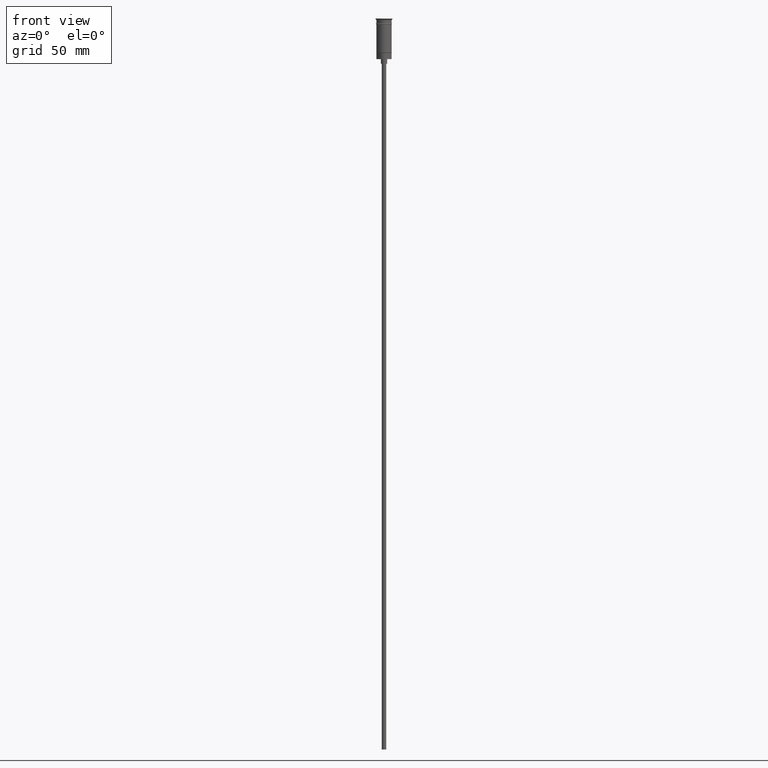
[diagram: clean part render]
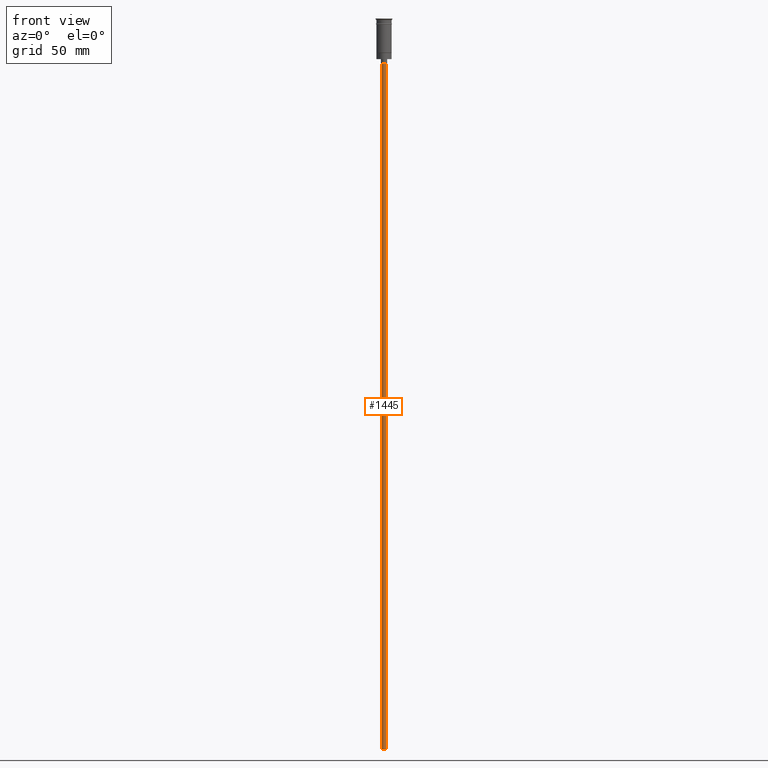
[diagram: same view with one face highlighted and labeled with its STEP entity id]
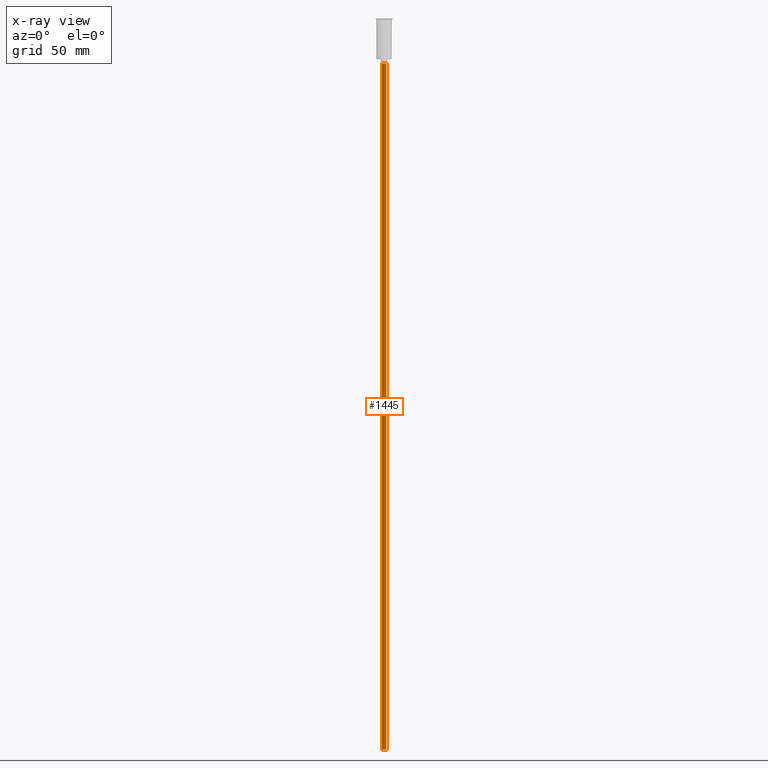
[diagram: x-ray of the same camera — body ghosted, the highlighted face saturated]
A machine part, front view. The second image highlights one B-rep face of the part: STEP entity #1445.
The next image is the same camera in x-ray: the body ghosted, the highlighted face saturated — about 0% of this face is hidden behind the body in this view.
In plain terms, the highlighted cylindrical surface (edge-blend (fillet) strip) has radius 1.5 mm, axis along (-0, -0, 1).
Its self-contained STEP definition (entity closure, byte-faithful):
#28 = AXIS2_PLACEMENT_3D ( 'NONE', #274, #39, #883 ) ;
#39 = DIRECTION ( 'NONE',  ( -0.000000000000000000, -0.000000000000000000, 1.000000000000000000 ) ) ;
#155 = EDGE_CURVE ( 'NONE', #548, #1506, #1438, .T. ) ;
#158 = DIRECTION ( 'NONE',  ( -1.000000000000000000, 0.000000000000000000, 0.000000000000000000 ) ) ;
#162 = ORIENTED_EDGE ( 'NONE', *, *, #1081, .F. ) ;
#220 = VERTEX_POINT ( 'NONE', #332 ) ;
#221 = CARTESIAN_POINT ( 'NONE',  ( 1.500000000000000222, 0.000000000000000000, -476.5000000000000568 ) ) ;
#274 = CARTESIAN_POINT ( 'NONE',  ( 0.000000000000000000, 0.000000000000000000, -476.5000000000000568 ) ) ;
#286 = VECTOR ( 'NONE', #1138, 1000.000000000000000 ) ;
#332 = CARTESIAN_POINT ( 'NONE',  ( 1.500000000000000222, 0.000000000000000000, -476.5000000000000568 ) ) ;
#372 = FACE_OUTER_BOUND ( 'NONE', #1169, .T. ) ;
#448 = LINE ( 'NONE', #221, #286 ) ;
#484 = DIRECTION ( 'NONE',  ( -0.000000000000000000, -0.000000000000000000, 1.000000000000000000 ) ) ;
#538 = CARTESIAN_POINT ( 'NONE',  ( -1.500000000000000222, 1.836970198721030181E-16, -476.5000000000000568 ) ) ;
#548 = VERTEX_POINT ( 'NONE', #1332 ) ;
#554 = CARTESIAN_POINT ( 'NONE',  ( 0.000000000000000000, 0.000000000000000000, -476.5000000000000568 ) ) ;
#619 = ORIENTED_EDGE ( 'NONE', *, *, #155, .T. ) ;
#624 = VERTEX_POINT ( 'NONE', #538 ) ;
#723 = AXIS2_PLACEMENT_3D ( 'NONE', #554, #824, #1554 ) ;
#746 = AXIS2_PLACEMENT_3D ( 'NONE', #1364, #759, #158 ) ;
#759 = DIRECTION ( 'NONE',  ( 0.000000000000000000, 0.000000000000000000, -1.000000000000000000 ) ) ;
#824 = DIRECTION ( 'NONE',  ( 0.000000000000000000, 0.000000000000000000, -1.000000000000000000 ) ) ;
#883 = DIRECTION ( 'NONE',  ( 1.000000000000000000, 0.000000000000000000, 0.000000000000000000 ) ) ;
#918 = EDGE_CURVE ( 'NONE', #624, #1506, #995, .T. ) ;
#995 = LINE ( 'NONE', #1109, #1223 ) ;
#1081 = EDGE_CURVE ( 'NONE', #220, #624, #1442, .T. ) ;
#1109 = CARTESIAN_POINT ( 'NONE',  ( -1.500000000000000222, 1.836970198721030181E-16, -476.5000000000000568 ) ) ;
#1138 = DIRECTION ( 'NONE',  ( -0.000000000000000000, -0.000000000000000000, 1.000000000000000000 ) ) ;
#1161 = EDGE_CURVE ( 'NONE', #220, #548, #448, .T. ) ;
#1169 = EDGE_LOOP ( 'NONE', ( #1480, #162, #1496, #619 ) ) ;
#1223 = VECTOR ( 'NONE', #484, 1000.000000000000000 ) ;
#1287 = CARTESIAN_POINT ( 'NONE',  ( -1.500000000000000222, 1.836970198721030181E-16, -29.50000000000000000 ) ) ;
#1332 = CARTESIAN_POINT ( 'NONE',  ( 1.500000000000000222, 0.000000000000000000, -29.50000000000000000 ) ) ;
#1364 = CARTESIAN_POINT ( 'NONE',  ( 0.000000000000000000, 0.000000000000000000, -29.50000000000000000 ) ) ;
#1438 = CIRCLE ( 'NONE', #746, 1.500000000000000222 ) ;
#1442 = CIRCLE ( 'NONE', #723, 1.500000000000000222 ) ;
#1445 = ADVANCED_FACE ( 'NONE', ( #372 ), #1502, .T. ) ;
#1480 = ORIENTED_EDGE ( 'NONE', *, *, #918, .F. ) ;
#1496 = ORIENTED_EDGE ( 'NONE', *, *, #1161, .T. ) ;
#1502 = CYLINDRICAL_SURFACE ( 'NONE', #28, 1.500000000000000222 ) ;
#1506 = VERTEX_POINT ( 'NONE', #1287 ) ;
#1554 = DIRECTION ( 'NONE',  ( -1.000000000000000000, 0.000000000000000000, 0.000000000000000000 ) ) ;